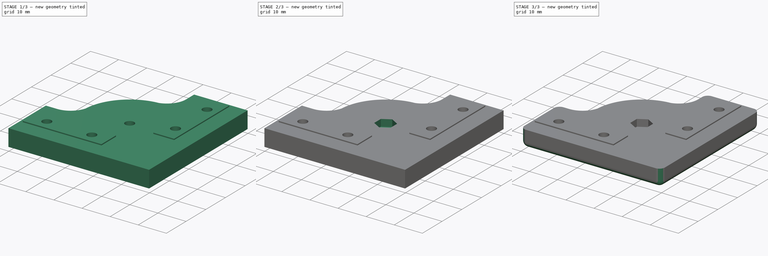
[diagram: build sequence overview — one tinted view per stage of 3, left to right]
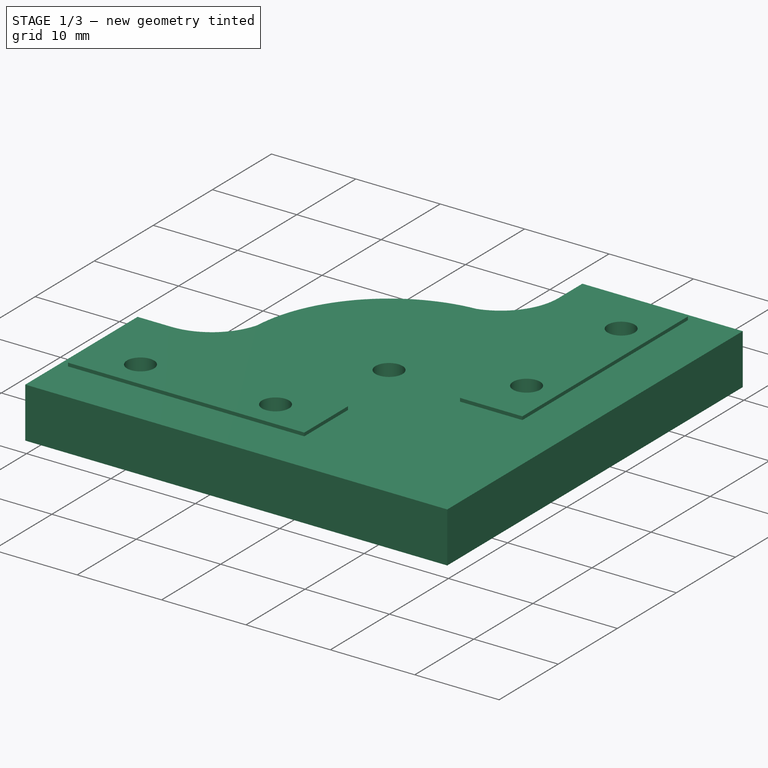
[diagram: stage 1 of 3 — iso view after this stage's code; geometry added in this stage tinted green]
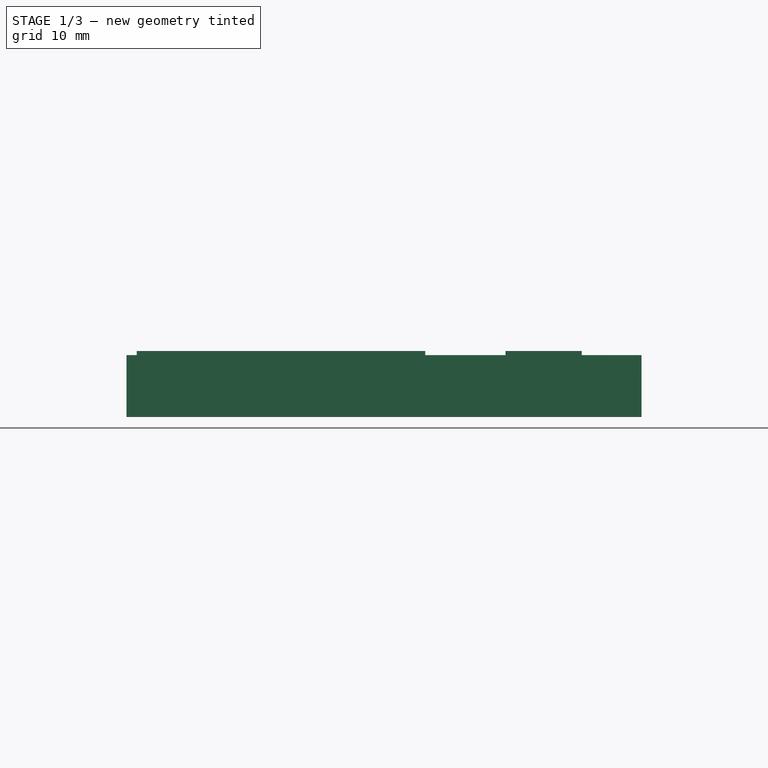
[diagram: stage 1 of 3 — front view after this stage's code; geometry added in this stage tinted green]
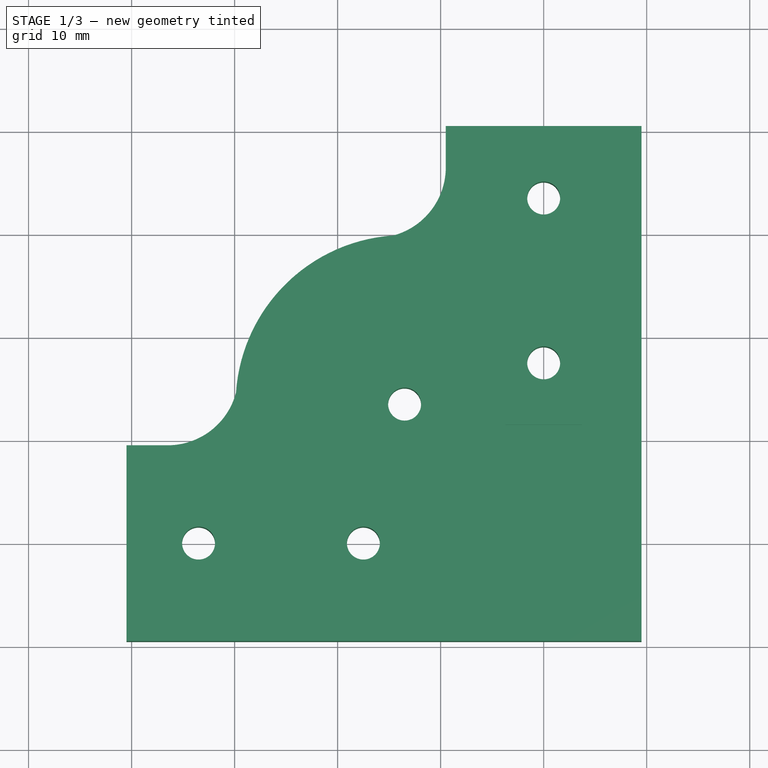
[diagram: stage 1 of 3 — top view after this stage's code; geometry added in this stage tinted green]
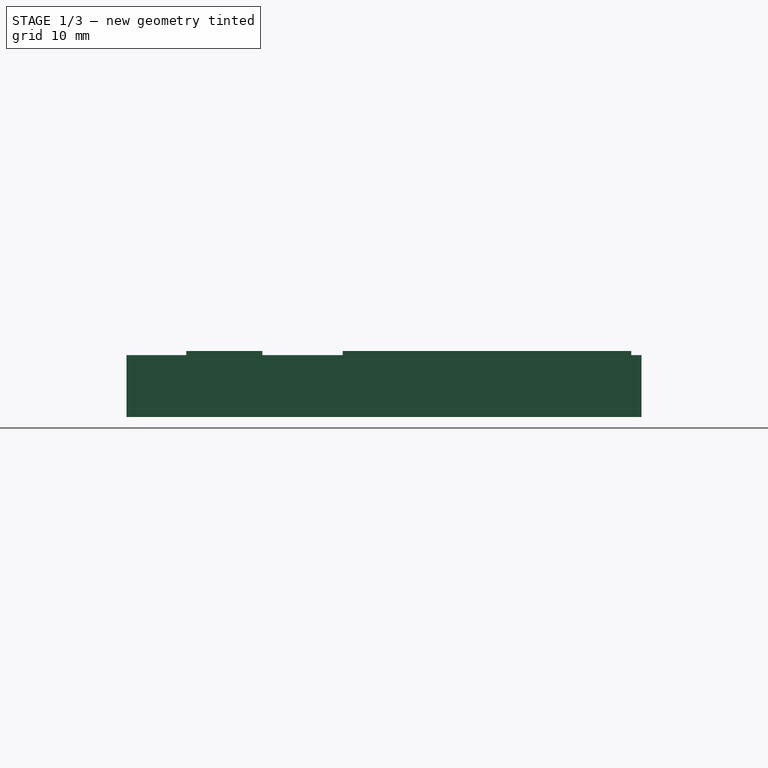
[diagram: stage 1 of 3 — right view after this stage's code; geometry added in this stage tinted green]
FCSTD DOCUMENT  (FreeCAD 0.16R5238 (Git))
Label: bottom-bracket
License: All rights reserved
LicenseURL: https://ru.wikipedia.org/wiki/All_rights_reserved
objects: Sketcher::SketchObject×6, PartDesign::Pad×3, PartDesign::Pocket×3, PartDesign::Chamfer×1, PartDesign::Fillet×1
note: 20 computed .brp shape members not serialized (recipe doc carries the construction recipe); baked Part::Feature solids carry a one-line shape summary decoded from their .brp

FEATURE [Sketcher::SketchObject] Sketch001  label="body"
  Placement = pos=(0,-20,0) rot=(0,0,1;0rad)
  sketch-geometry (9):
    g0: LineSegment StartX=-9.5 StartY=40.5 StartZ=0 EndX=9.5 EndY=40.5 EndZ=0
    g1: LineSegment StartX=9.5 StartY=40.5 StartZ=0 EndX=9.5 EndY=-9.5 EndZ=0
    g2: LineSegment StartX=9.5 StartY=-9.5 StartZ=0 EndX=-40.5 EndY=-9.5 EndZ=0
    g3: LineSegment StartX=-40.5 StartY=-9.5 StartZ=0 EndX=-40.5 EndY=9.5 EndZ=0
    g4: LineSegment StartX=-40.5 StartY=9.5 StartZ=0 EndX=-36.5 EndY=9.5 EndZ=0
    g5: LineSegment StartX=-9.5 StartY=36.5 StartZ=0 EndX=-9.5 EndY=40.5 EndZ=0
    g6: ArcOfCircle CenterX=-36.5 CenterY=16.3614 CenterZ=0 NormalX=0 NormalY=0 NormalZ=1 Radius=6.86137 StartAngle=4.71239 EndAngle=6.02357
    g7: ArcOfCircle CenterX=-16.3614 CenterY=36.5 CenterZ=0 NormalX=0 NormalY=0 NormalZ=1 Radius=6.86137 StartAngle=4.972 EndAngle=6.28319
    g8: ArcOfCircle CenterX=-13.5 CenterY=13.5 CenterZ=0 NormalX=0 NormalY=0 NormalZ=1 Radius=16.4055 StartAngle=1.6379 EndAngle=3.07449
  constraints (24):
    c: Coincident(g0,g1)
    c: Vertical(g1)
    c: Coincident(g1,g2)
    c: Horizontal(g2)
    c: Coincident(g2,g3)
    c: Coincident(g3,g4)
    c: Horizontal(g4)
    c: Coincident(g5,g0)
    c: Vertical(g5)
    c: Symmetric(g0,g0,g-2)
    c: Symmetric(g3,g2,g-1)
    c: Equal(g0,g3)
    c: Equal(g2,g1)
    c: DistanceX(g2,g1) = 50
    c: DistanceY(g3,g2) = -19
    c: Equal(g5,g4)
    c: Tangent(g4,g6) = -1.5708
    c: Tangent(g5,g7) = -1.5708
    c: Equal(g7,g6)
    c: DistanceX(g4,g3) = -4
    c: Coincident(g8,g7)
    c: Coincident(g8,g6)
    c: DistanceX(g8,g1) = 23
    c: DistanceY(g8,g1) = -23
FEATURE [PartDesign::Pad] Pad
  Length = 6
  Length2 = 100
  Placement = pos=(0,-20,0) rot=(0,0,1;0rad)
  Sketch = -> Sketch001
  Type = 0
FEATURE [Sketcher::SketchObject] Sketch  label="pads"
  ExternalGeometry = -> [Pad]
  Placement = pos=(0,-20,6) rot=(0,0,1;0rad)
  Support = -> Pad [Face11]
  sketch-geometry (8):
    g0: LineSegment StartX=-39.5 StartY=3.7 StartZ=0 EndX=-11.5 EndY=3.7 EndZ=0
    g1: LineSegment StartX=-11.5 StartY=3.7 StartZ=0 EndX=-11.5 EndY=-3.7 EndZ=0
    g2: LineSegment StartX=-11.5 StartY=-3.7 StartZ=0 EndX=-39.5 EndY=-3.7 EndZ=0
    g3: LineSegment StartX=-39.5 StartY=-3.7 StartZ=0 EndX=-39.5 EndY=3.7 EndZ=0
    g4: LineSegment StartX=-3.7 StartY=39.5 StartZ=0 EndX=3.7 EndY=39.5 EndZ=0
    g5: LineSegment StartX=3.7 StartY=39.5 StartZ=0 EndX=3.7 EndY=11.5 EndZ=0
    g6: LineSegment StartX=3.7 StartY=11.5 StartZ=0 EndX=-3.7 EndY=11.5 EndZ=0
    g7: LineSegment StartX=-3.7 StartY=11.5 StartZ=0 EndX=-3.7 EndY=39.5 EndZ=0
  constraints (24):
    c: Coincident(g0,g1)
    c: Coincident(g1,g2)
    c: Coincident(g2,g3)
    c: Coincident(g3,g0)
    c: Horizontal(g0)
    c: Horizontal(g2)
    c: Vertical(g1)
    c: Vertical(g3)
    c: DistanceX(g1,g-5) = 21
    c: DistanceY(g0,g2) = -7.4
    c: DistanceX(g2,g-4) = -1
    c: Coincident(g4,g5)
    c: Coincident(g5,g6)
    c: Coincident(g6,g7)
    c: Coincident(g7,g4)
    c: Horizontal(g4)
    c: Horizontal(g6)
    c: Vertical(g5)
    c: Vertical(g7)
    c: DistanceY(g4,g-6) = 1
    c: Equal(g0,g7)
    c: Symmetric(g5,g6,g-2)
    c: Symmetric(g0,g1,g-1)
    c: Equal(g6,g1)
FEATURE [PartDesign::Pad] Pad001
  Length = 0.4
  Length2 = 100
  Placement = pos=(0,-20,0) rot=(0,0,1;0rad)
  Sketch = -> Sketch
  Type = 0
FEATURE [Sketcher::SketchObject] Sketch002  label="m3 holes"
  ExternalGeometry = -> [Pad001]
  Placement = pos=(0,-20,0) rot=(1,0,0;3.14159rad)
  Support = -> Pad001 [Face4]
  sketch-geometry (5):
    g0: Circle CenterX=-33.5 CenterY=0 CenterZ=0 NormalX=0 NormalY=0 NormalZ=1 Radius=1.6
    g1: Circle CenterX=-17.5 CenterY=0 CenterZ=0 NormalX=0 NormalY=0 NormalZ=1 Radius=1.6
    g2: Circle CenterX=0 CenterY=-17.5 CenterZ=0 NormalX=0 NormalY=0 NormalZ=1 Radius=1.6
    g3: Circle CenterX=0 CenterY=-33.5 CenterZ=0 NormalX=0 NormalY=0 NormalZ=1 Radius=1.6
    g4: Circle CenterX=-13.5 CenterY=-13.5 CenterZ=0 NormalX=0 NormalY=0 NormalZ=1 Radius=1.6
  constraints (14):
    c: PointOnObject(g0,g-1)
    c: PointOnObject(g1,g-1)
    c: PointOnObject(g3,g-2)
    c: PointOnObject(g2,g-2)
    c: Equal(g2,g3)
    c: Equal(g3,g1)
    c: Equal(g1,g0)
    c: Radius(g0) = 1.6
    c: DistanceX(g0,g-4) = -7
    c: DistanceY(g3,g-6) = -7
    c: DistanceY(g-5,g2) = -27
    c: DistanceX(g1,g-5) = 27
    c: Coincident(g4,g-7)
    c: Equal(g4,g0)
FEATURE [PartDesign::Pocket] Pocket
  Length = 5
  Placement = pos=(0,-20,0) rot=(0,0,1;0rad)
  Sketch = -> Sketch002
  Type = 1
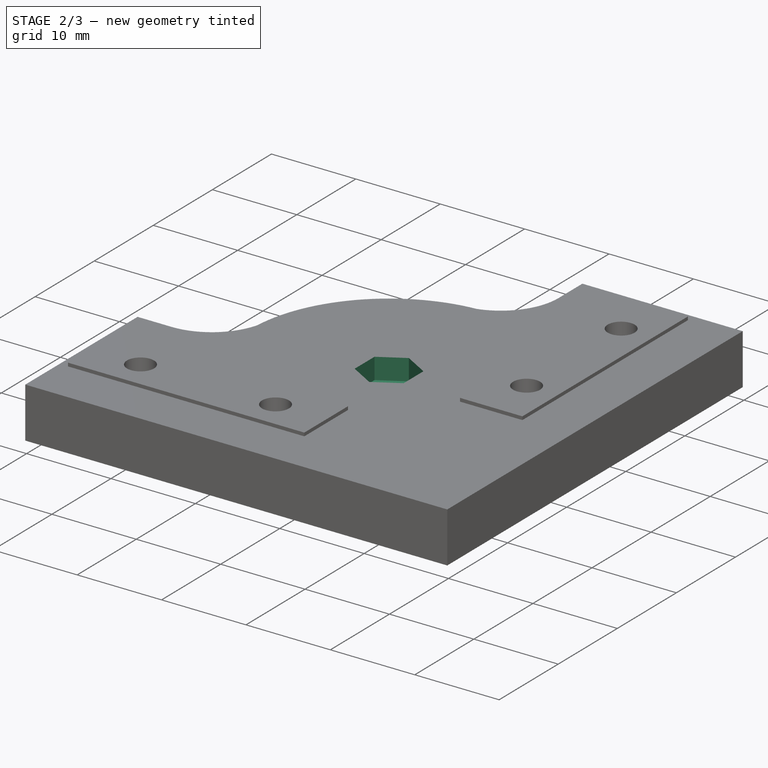
[diagram: stage 2 of 3 — iso view after this stage's code; geometry added in this stage tinted green]
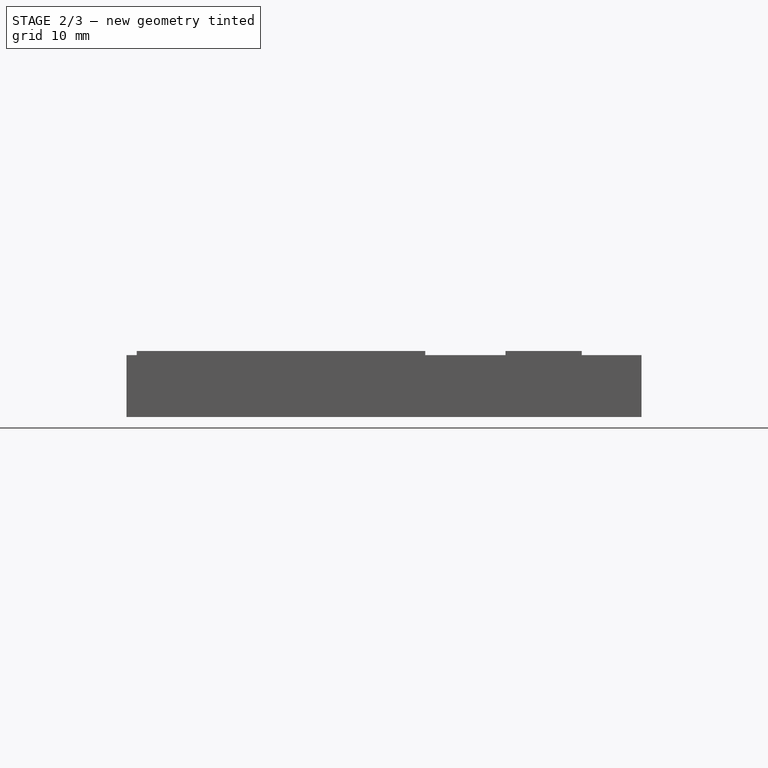
[diagram: stage 2 of 3 — front view after this stage's code; geometry added in this stage tinted green]
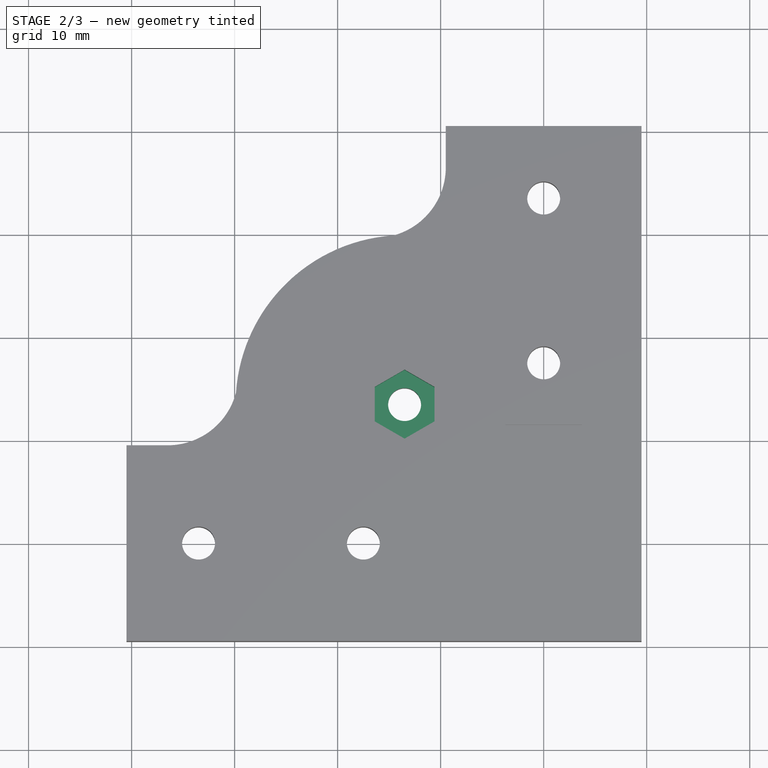
[diagram: stage 2 of 3 — top view after this stage's code; geometry added in this stage tinted green]
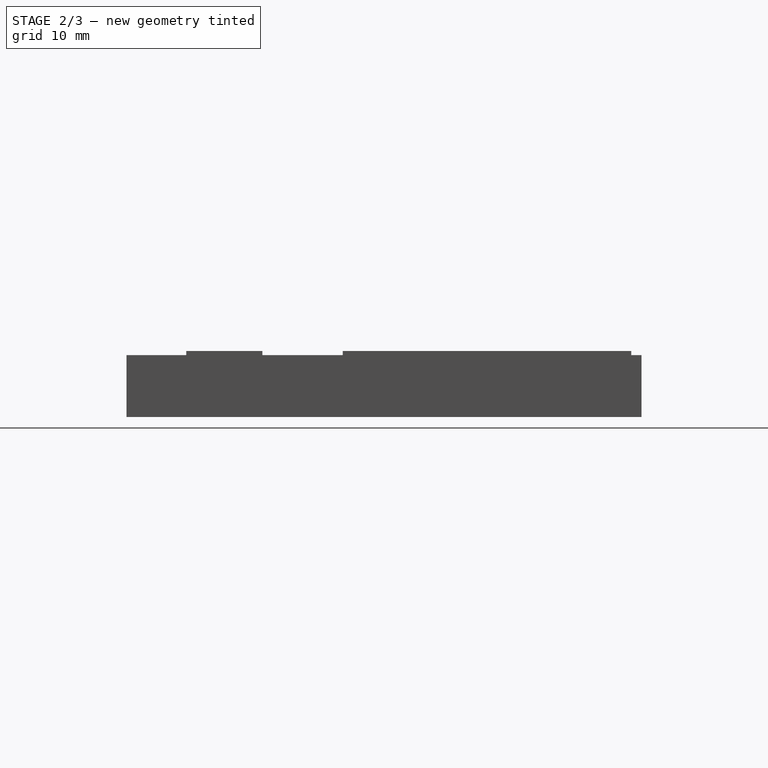
[diagram: stage 2 of 3 — right view after this stage's code; geometry added in this stage tinted green]
FEATURE [Sketcher::SketchObject] Sketch003  label="nut"
  ExternalGeometry = -> [Pocket]
  Placement = pos=(0,-20,6) rot=(0,0,1;0rad)
  Support = -> Pocket [Face5]
  sketch-geometry (7):
    g0: LineSegment StartX=-10.5988 StartY=11.825 StartZ=0 EndX=-10.5988 EndY=15.175 EndZ=0
    g1: LineSegment StartX=-10.5988 StartY=15.175 StartZ=0 EndX=-13.5 EndY=16.85 EndZ=0
    g2: LineSegment StartX=-13.5 StartY=16.85 StartZ=0 EndX=-16.4012 EndY=15.175 EndZ=0
    g3: LineSegment StartX=-16.4012 StartY=15.175 StartZ=0 EndX=-16.4012 EndY=11.825 EndZ=0
    g4: LineSegment StartX=-16.4012 StartY=11.825 StartZ=0 EndX=-13.5 EndY=10.15 EndZ=0
    g5: LineSegment StartX=-13.5 StartY=10.15 StartZ=0 EndX=-10.5988 EndY=11.825 EndZ=0
    g6: Circle [constr] CenterX=-13.5 CenterY=13.5 CenterZ=0 NormalX=0 NormalY=0 NormalZ=1 Radius=3.35
  constraints (16):
    c: Coincident(g0,g1)
    c: Coincident(g1,g2)
    c: Coincident(g2,g3)
    c: Coincident(g3,g4)
    c: Coincident(g4,g5)
    c: Coincident(g5,g0)
    c: Equal(g0, g1-g5) x5
    c: PointOnObject(g0,g6)
    c: PointOnObject(g1,g6)
    c: PointOnObject(g2,g6)
    c: PointOnObject(g3,g6)
    c: PointOnObject(g4,g6)
    c: PointOnObject(g5,g6)
    c: Coincident(g6,g-3)
    c: Radius(g6) = 3.35
    c: Vertical(g0)
FEATURE [PartDesign::Pocket] Pocket001
  Length = 2.5
  Placement = pos=(0,-20,0) rot=(0,0,1;0rad)
  Sketch = -> Sketch003
  Type = 0
FEATURE [Sketcher::SketchObject] Sketch004  label="m3 heads"
  ExternalGeometry = -> [Pocket001]
  Placement = pos=(0,-20,0) rot=(1,0,0;3.14159rad)
  Support = -> Pocket001 [Face4]
  sketch-geometry (4):
    g0: Circle CenterX=-33.5 CenterY=0 CenterZ=0 NormalX=0 NormalY=0 NormalZ=1 Radius=3
    g1: Circle CenterX=-17.5 CenterY=0 CenterZ=0 NormalX=0 NormalY=0 NormalZ=1 Radius=3
    g2: Circle CenterX=0 CenterY=-17.5 CenterZ=0 NormalX=0 NormalY=0 NormalZ=1 Radius=3
    g3: Circle CenterX=0 CenterY=-33.5 CenterZ=0 NormalX=0 NormalY=0 NormalZ=1 Radius=3
  constraints (8):
    c: Coincident(g0,g-4)
    c: Coincident(g1,g-3)
    c: Coincident(g2,g-5)
    c: Coincident(g3,g-6)
    c: Equal(g3,g2)
    c: Equal(g2,g1)
    c: Equal(g1,g0)
    c: Radius(g0) = 3
FEATURE [PartDesign::Pocket] Pocket002
  Length = 1
  Placement = pos=(0,-20,0) rot=(0,0,1;0rad)
  Sketch = -> Sketch004
  Type = 0
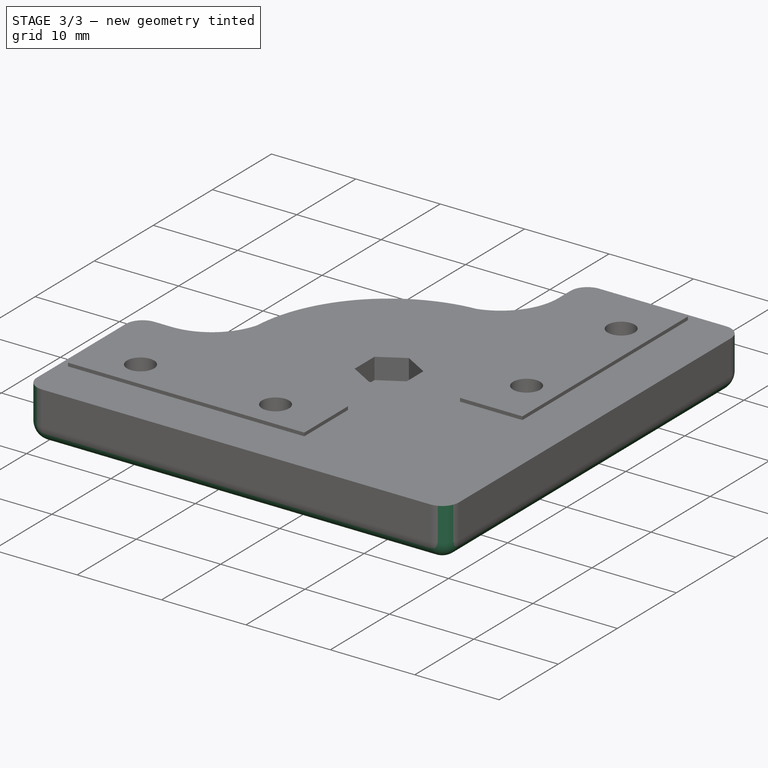
[diagram: stage 3 of 3 — iso view after this stage's code; geometry added in this stage tinted green]
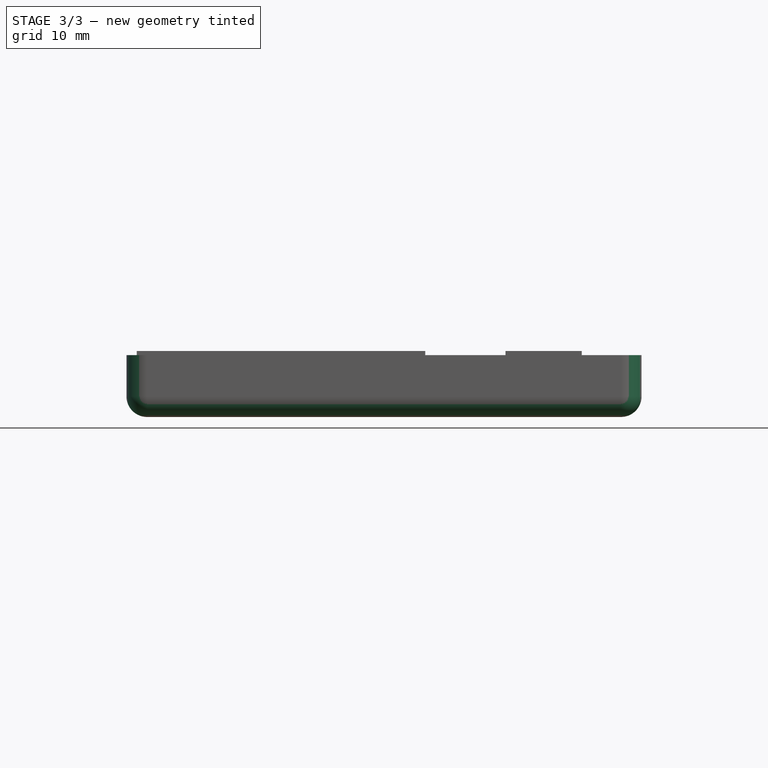
[diagram: stage 3 of 3 — front view after this stage's code; geometry added in this stage tinted green]
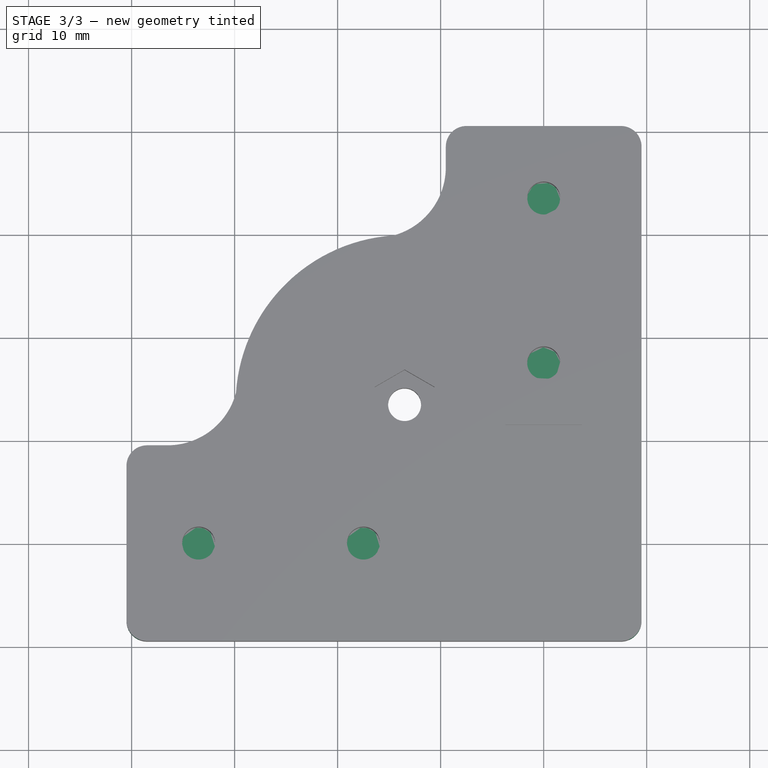
[diagram: stage 3 of 3 — top view after this stage's code; geometry added in this stage tinted green]
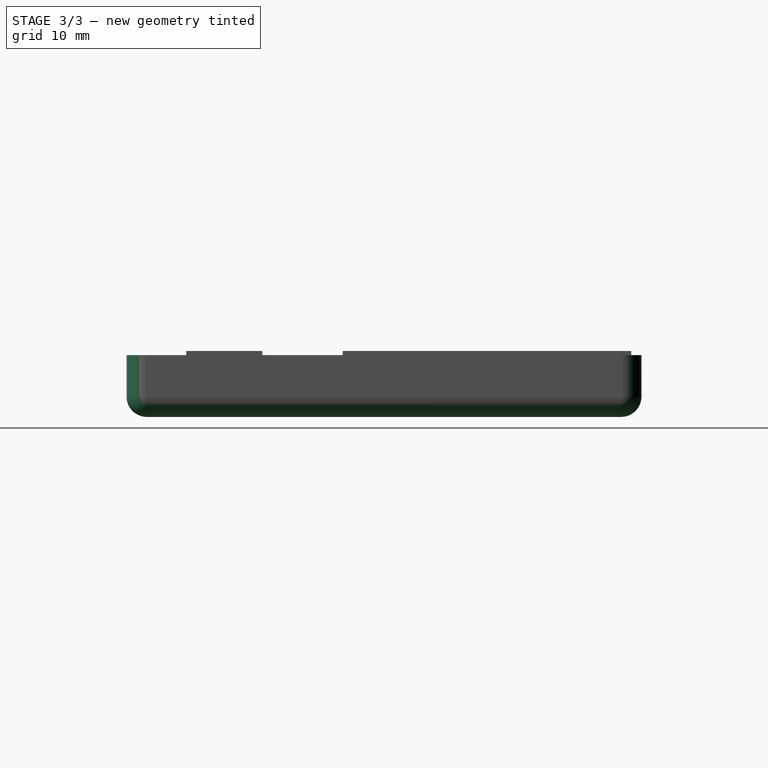
[diagram: stage 3 of 3 — right view after this stage's code; geometry added in this stage tinted green]
FEATURE [Sketcher::SketchObject] Sketch005  label="aux plates for print"
  ExternalGeometry = -> [Pocket002]
  Placement = pos=(0,-20,1) rot=(1,0,0;3.14159rad)
  Support = -> Pocket002 [Face33]
  sketch-geometry (4):
    g0: Circle CenterX=-33.5 CenterY=0 CenterZ=0 NormalX=0 NormalY=0 NormalZ=1 Radius=3
    g1: Circle CenterX=-17.5 CenterY=0 CenterZ=0 NormalX=0 NormalY=0 NormalZ=1 Radius=3
    g2: Circle CenterX=0 CenterY=-17.5 CenterZ=0 NormalX=0 NormalY=0 NormalZ=1 Radius=3
    g3: Circle CenterX=0 CenterY=-33.5 CenterZ=0 NormalX=0 NormalY=0 NormalZ=1 Radius=3
  constraints (8):
    c: Coincident(g0,g-3)
    c: Coincident(g1,g-4)
    c: Coincident(g2,g-5)
    c: Coincident(g3,g-6)
    c: Equal(g3,g2)
    c: Equal(g2,g1)
    c: Equal(g1,g0)
    c: Equal(g1,g-4)
FEATURE [PartDesign::Pad] Pad002
  Length = 0.2
  Length2 = 100
  Placement = pos=(0,-20,0) rot=(0,0,1;0rad)
  Reversed = true
  Sketch = -> Sketch005
  Type = 0
FEATURE [PartDesign::Chamfer] Chamfer
  Base = -> Pad002 [Edge18,Edge19,Edge20,Edge21]
  Placement = pos=(0,-20,0) rot=(0,0,1;0rad)
  Size = 0.4
FEATURE [PartDesign::Fillet] Fillet
  Base = -> Chamfer [Edge9,Edge10,Edge8,Edge30,Edge7,Edge5,Edge3,Edge17,Edge2,Edge18,Edge4,Edge6,Edge26,Edge22]
  Placement = pos=(0,-20,0) rot=(0,0,1;0rad)
  Radius = 2
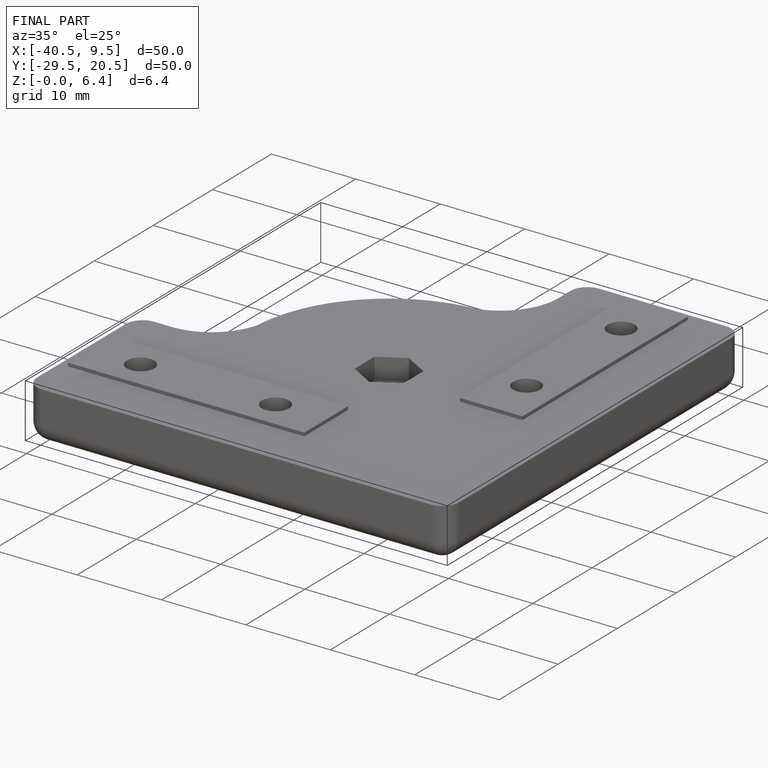
[diagram: finished part — iso view with bounding-box wireframe]
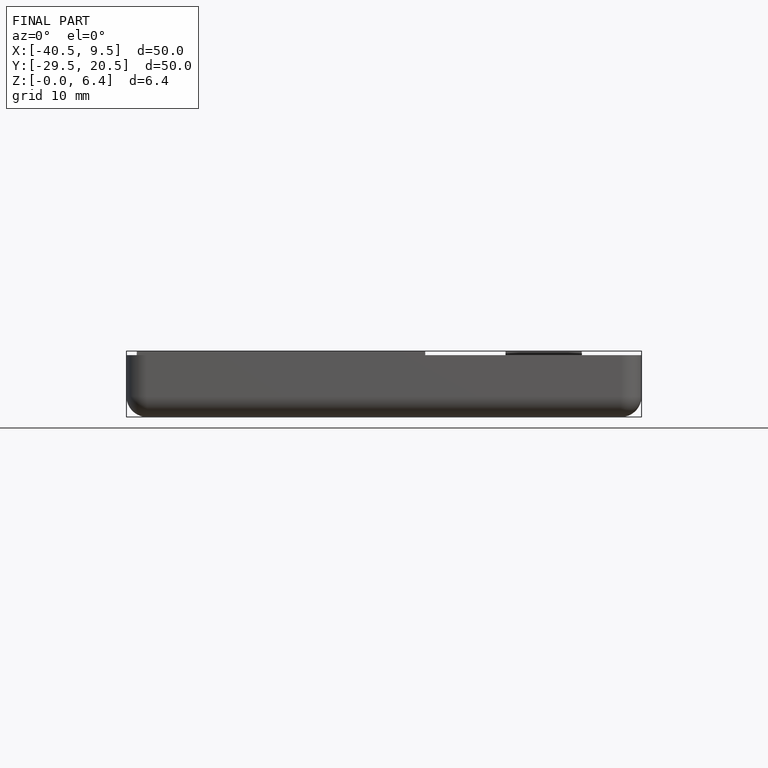
[diagram: finished part — front view with bounding-box wireframe]
